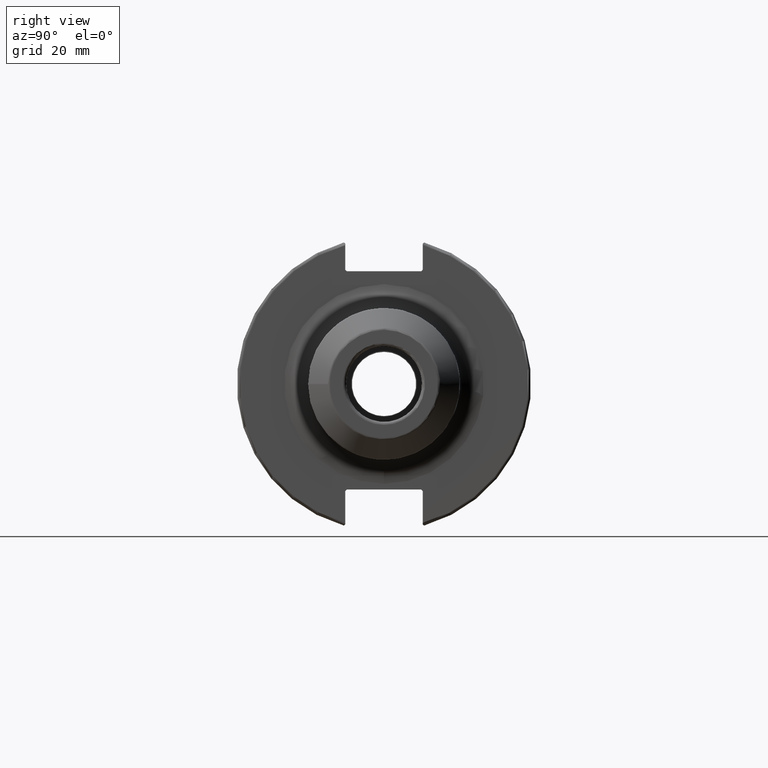
[diagram: clean part render]
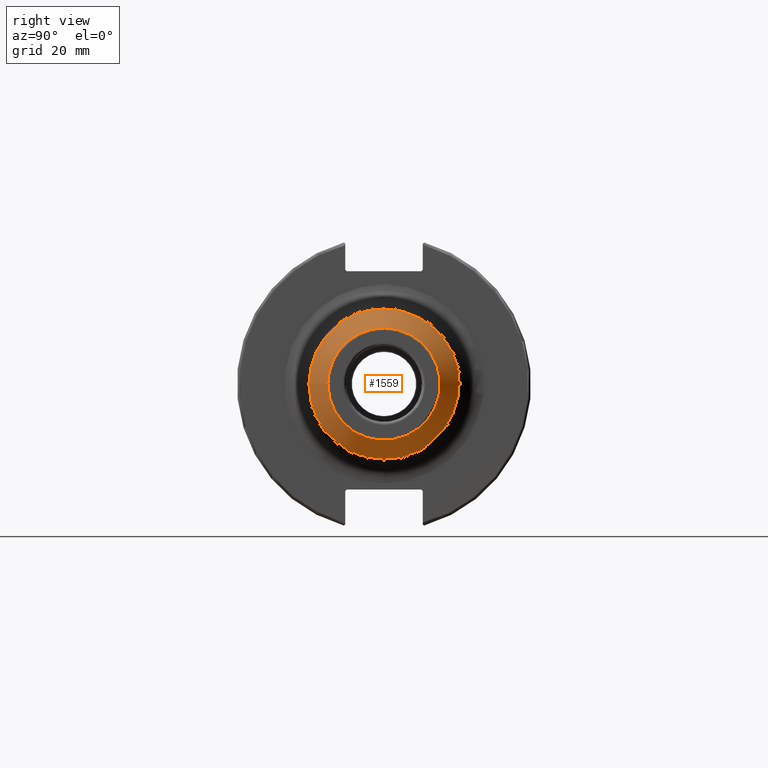
[diagram: same view with one face highlighted and labeled with its STEP entity id]
A machine part, right view. The second image highlights one B-rep face of the part: STEP entity #1559.
In plain terms, the highlighted conical surface has half-angle 45 deg.
Its self-contained STEP definition (entity closure, byte-faithful):
#45=CONICAL_SURFACE('',#1682,21.95,0.785398163397449);
#129=FACE_OUTER_BOUND('',#222,.T.);
#222=EDGE_LOOP('',(#1076,#1077,#1078,#1079,#1080,#1081));
#380=LINE('',#2469,#474);
#474=VECTOR('',#1882,21.95);
#568=CIRCLE('',#1677,25.1071067811865);
#569=CIRCLE('',#1678,25.1071067811865);
#573=CIRCLE('',#1683,18.7928932188135);
#574=CIRCLE('',#1684,18.7928932188135);
#657=VERTEX_POINT('',#2456);
#658=VERTEX_POINT('',#2457);
#661=VERTEX_POINT('',#2466);
#662=VERTEX_POINT('',#2467);
#823=EDGE_CURVE('',#657,#658,#568,.T.);
#824=EDGE_CURVE('',#658,#657,#569,.T.);
#828=EDGE_CURVE('',#661,#662,#573,.T.);
#829=EDGE_CURVE('',#661,#658,#380,.T.);
#830=EDGE_CURVE('',#662,#661,#574,.T.);
#1076=ORIENTED_EDGE('',*,*,#828,.F.);
#1077=ORIENTED_EDGE('',*,*,#829,.T.);
#1078=ORIENTED_EDGE('',*,*,#823,.F.);
#1079=ORIENTED_EDGE('',*,*,#824,.F.);
#1080=ORIENTED_EDGE('',*,*,#829,.F.);
#1081=ORIENTED_EDGE('',*,*,#830,.F.);
#1559=ADVANCED_FACE('',(#129),#45,.T.);
#1677=AXIS2_PLACEMENT_3D('',#2458,#1868,#1869);
#1678=AXIS2_PLACEMENT_3D('',#2459,#1870,#1871);
#1682=AXIS2_PLACEMENT_3D('',#2465,#1878,#1879);
#1683=AXIS2_PLACEMENT_3D('',#2468,#1880,#1881);
#1684=AXIS2_PLACEMENT_3D('',#2470,#1883,#1884);
#1868=DIRECTION('center_axis',(-1.,0.,0.));
#1869=DIRECTION('ref_axis',(0.,-1.,3.06161699786838E-17));
#1870=DIRECTION('center_axis',(-1.,0.,0.));
#1871=DIRECTION('ref_axis',(0.,-1.,3.06161699786838E-17));
#1878=DIRECTION('center_axis',(-1.,0.,0.));
#1879=DIRECTION('ref_axis',(0.,1.,0.));
#1880=DIRECTION('center_axis',(1.,0.,0.));
#1881=DIRECTION('ref_axis',(0.,-1.,3.06161699786838E-17));
#1882=DIRECTION('',(-0.707106781186547,-0.707106781186548,-8.65956056235494E-17));
#1883=DIRECTION('center_axis',(1.,0.,0.));
#1884=DIRECTION('ref_axis',(0.,-1.,3.06161699786838E-17));
#2456=CARTESIAN_POINT('',(94.9928932188135,-3.07473379554309E-15,25.1071067811865));
#2457=CARTESIAN_POINT('',(94.9928932188135,-25.1071067811866,-3.07473379554309E-15));
#2458=CARTESIAN_POINT('Origin',(94.9928932188135,0.,-3.84341724442886E-15));
#2459=CARTESIAN_POINT('Origin',(94.9928932188135,0.,-3.84341724442886E-15));
#2465=CARTESIAN_POINT('Origin',(98.15,0.,0.));
#2466=CARTESIAN_POINT('',(101.307106781187,-18.7928932188135,-2.30146565271379E-15));
#2467=CARTESIAN_POINT('',(101.307106781187,-2.30146565271379E-15,18.7928932188135));
#2468=CARTESIAN_POINT('Origin',(101.307106781187,0.,-2.87683206589224E-15));
#2469=CARTESIAN_POINT('',(98.15,-21.95,-2.68809972412844E-15));
#2470=CARTESIAN_POINT('Origin',(101.307106781187,0.,-2.87683206589224E-15));